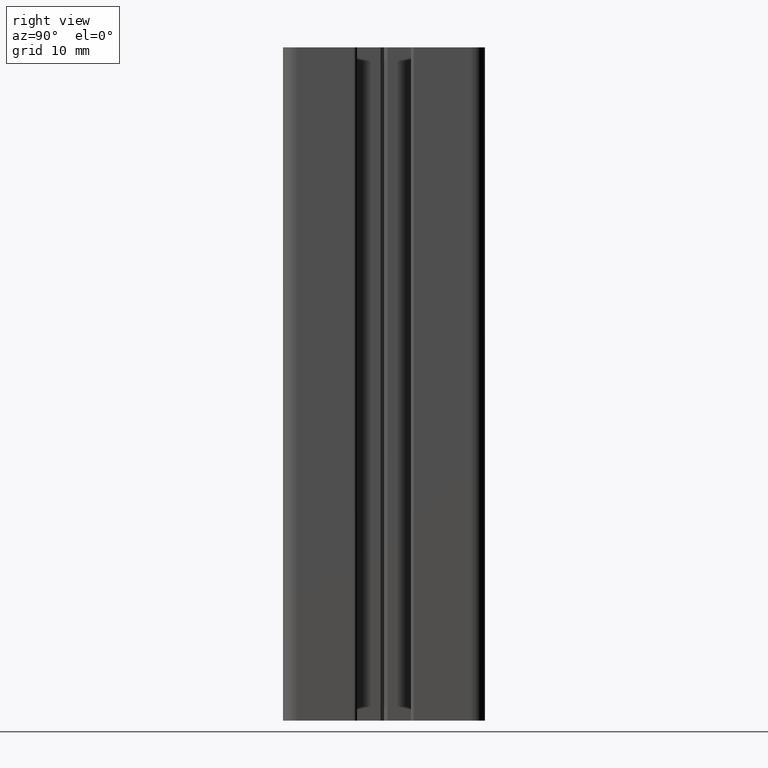
[diagram: clean part render]
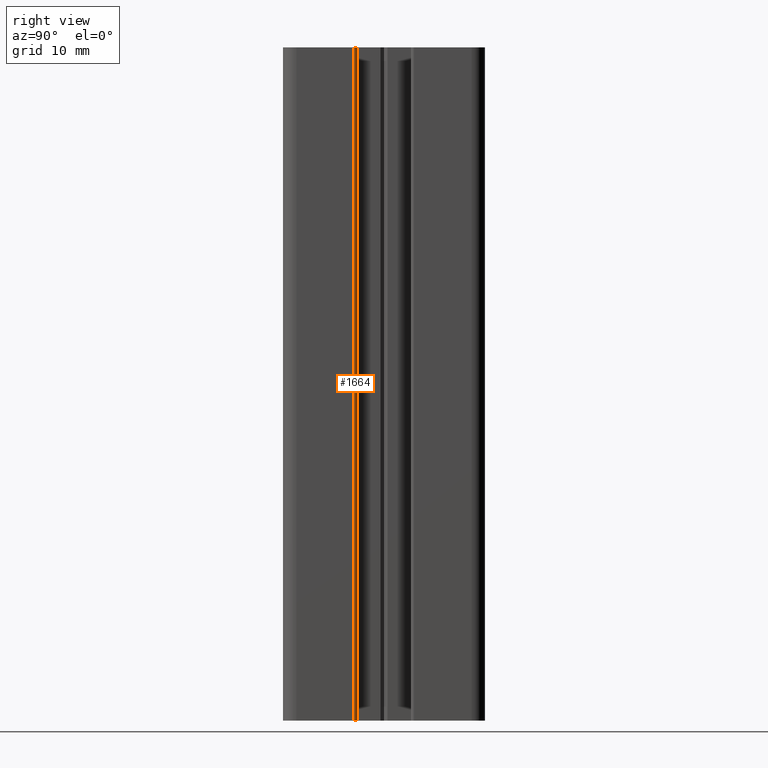
[diagram: same view with one face highlighted and labeled with its STEP entity id]
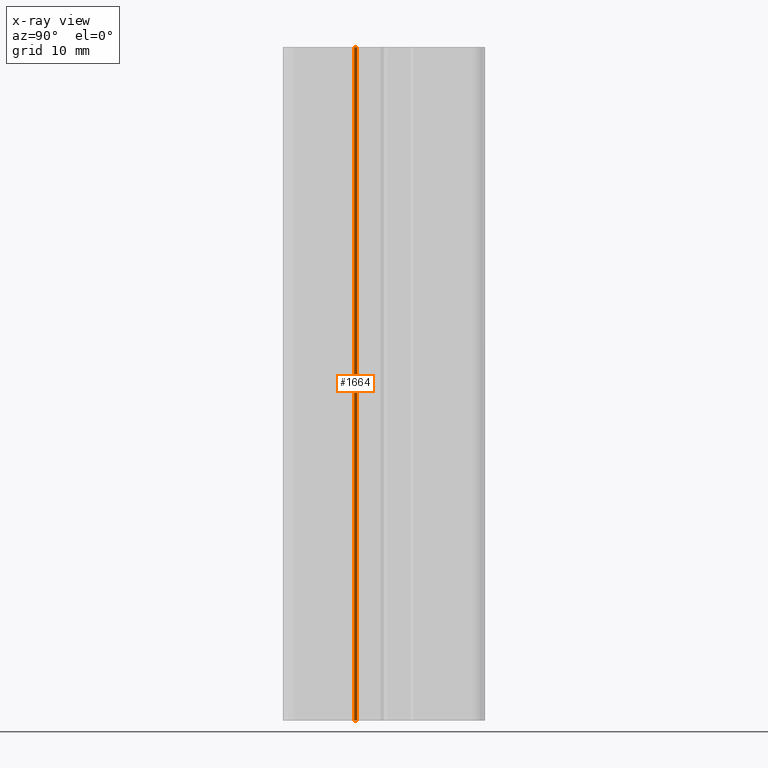
[diagram: x-ray of the same camera — body ghosted, the highlighted face saturated]
A machine part, right view. The second image highlights one B-rep face of the part: STEP entity #1664.
The next image is the same camera in x-ray: the body ghosted, the highlighted face saturated — about 0% of this face is hidden behind the body in this view.
In plain terms, the highlighted cylindrical surface (edge-blend (fillet) strip) has radius 0.5 mm, axis along (0, 0, 1).
Its self-contained STEP definition (entity closure, byte-faithful):
#131=FACE_OUTER_BOUND('',#216,.T.);
#216=EDGE_LOOP('',(#1307,#1308,#1309,#1310));
#374=LINE('',#2675,#553);
#375=LINE('',#2678,#554);
#553=VECTOR('',#2180,100.);
#554=VECTOR('',#2183,100.);
#658=CIRCLE('',#1799,0.500000002025548);
#659=CIRCLE('',#1800,0.500000002025548);
#794=VERTEX_POINT('',#2671);
#795=VERTEX_POINT('',#2672);
#796=VERTEX_POINT('',#2674);
#797=VERTEX_POINT('',#2676);
#1010=EDGE_CURVE('',#794,#795,#658,.T.);
#1011=EDGE_CURVE('',#794,#796,#374,.T.);
#1012=EDGE_CURVE('',#797,#796,#659,.T.);
#1013=EDGE_CURVE('',#797,#795,#375,.T.);
#1307=ORIENTED_EDGE('',*,*,#1010,.F.);
#1308=ORIENTED_EDGE('',*,*,#1011,.T.);
#1309=ORIENTED_EDGE('',*,*,#1012,.F.);
#1310=ORIENTED_EDGE('',*,*,#1013,.T.);
#1599=CYLINDRICAL_SURFACE('',#1798,0.500000002025548);
#1664=ADVANCED_FACE('',(#131),#1599,.T.);
#1798=AXIS2_PLACEMENT_3D('',#2670,#2176,#2177);
#1799=AXIS2_PLACEMENT_3D('',#2673,#2178,#2179);
#1800=AXIS2_PLACEMENT_3D('',#2677,#2181,#2182);
#2176=DIRECTION('center_axis',(0.,0.,1.));
#2177=DIRECTION('ref_axis',(-1.,1.11022302012761E-15,0.));
#2178=DIRECTION('center_axis',(0.,0.,1.));
#2179=DIRECTION('ref_axis',(-1.,1.11022302012761E-15,0.));
#2180=DIRECTION('',(0.,0.,-1.));
#2181=DIRECTION('center_axis',(0.,0.,-1.));
#2182=DIRECTION('ref_axis',(-1.,1.11022302012761E-15,0.));
#2183=DIRECTION('',(0.,0.,1.));
#2670=CARTESIAN_POINT('Origin',(14.4999999981021,-4.49999999392309,0.));
#2671=CARTESIAN_POINT('',(15.0000000001276,-4.49999999392309,100.));
#2672=CARTESIAN_POINT('',(14.4999999981021,-3.99999999189758,100.));
#2673=CARTESIAN_POINT('Origin',(14.4999999981021,-4.49999999392309,100.));
#2674=CARTESIAN_POINT('',(15.0000000001276,-4.49999999392309,0.));
#2675=CARTESIAN_POINT('',(14.9999999997471,-4.49999999390822,0.));
#2676=CARTESIAN_POINT('',(14.4999999981021,-3.99999999189758,0.));
#2677=CARTESIAN_POINT('Origin',(14.4999999981021,-4.49999999392309,0.));
#2678=CARTESIAN_POINT('',(14.4999999981021,-3.99999999189758,0.));